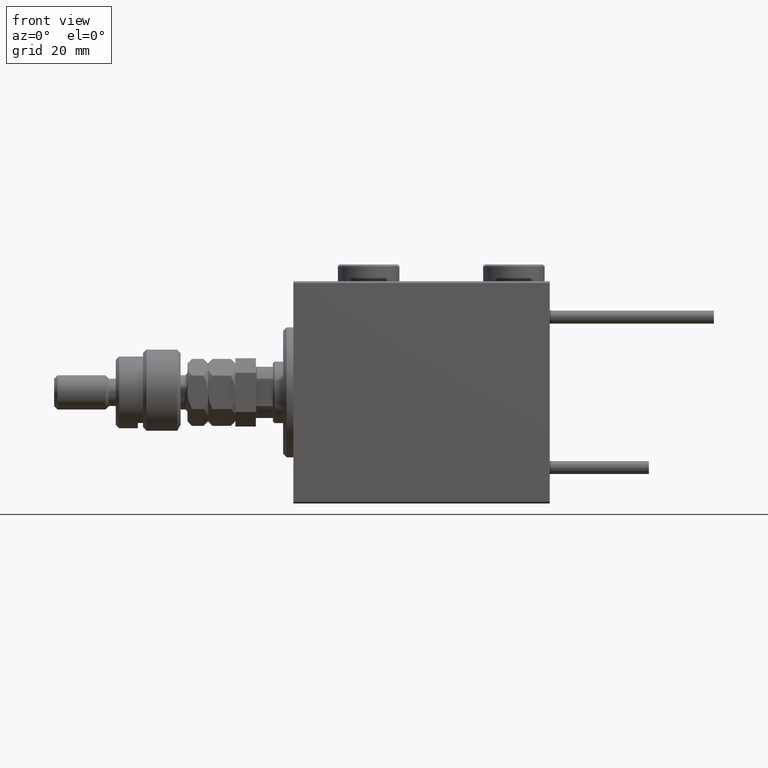
[diagram: clean part render]
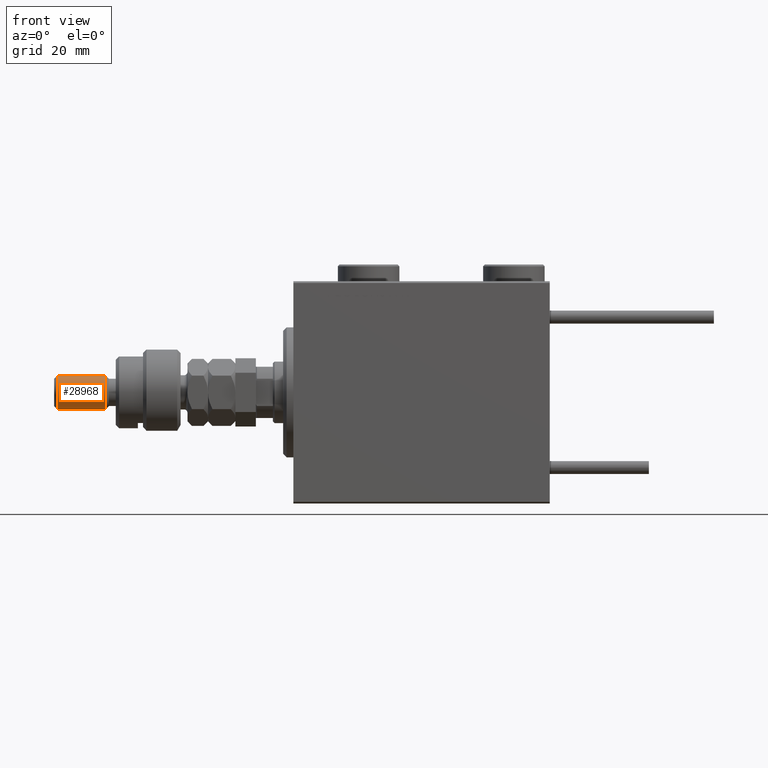
[diagram: same view with one face highlighted and labeled with its STEP entity id]
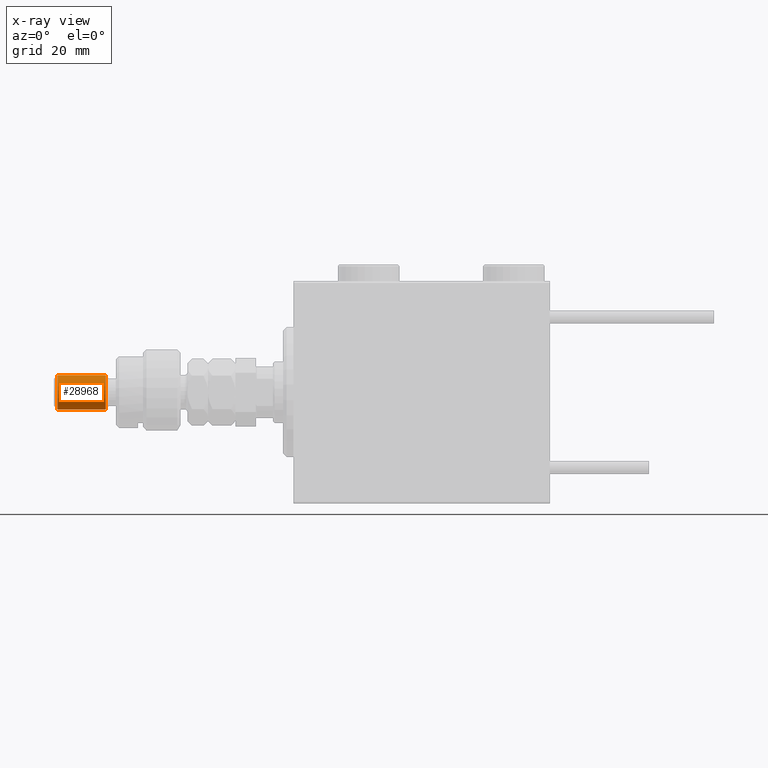
[diagram: x-ray of the same camera — body ghosted, the highlighted face saturated]
A machine part, front view. The second image highlights one B-rep face of the part: STEP entity #28968.
The next image is the same camera in x-ray: the body ghosted, the highlighted face saturated — about 0% of this face is hidden behind the body in this view.
In plain terms, the highlighted cylindrical surface (edge-blend (fillet) strip) has radius 5 mm, axis along (1, 0, -0).
Its self-contained STEP definition (entity closure, byte-faithful):
#247 = CARTESIAN_POINT ( 'NONE',  ( -5.000000000000000888, 0.000000000000000000, 36.00000000000000711 ) ) ;
#1772 = CARTESIAN_POINT ( 'NONE',  ( 5.000000000000000888, 6.123233995736767268E-16, 21.99999999999999289 ) ) ;
#2523 = DIRECTION ( 'NONE',  ( -0.000000000000000000, -0.000000000000000000, -1.000000000000000000 ) ) ;
#2704 = CIRCLE ( 'NONE', #50116, 5.000000000000000888 ) ;
#4340 = EDGE_LOOP ( 'NONE', ( #39442, #18457, #51575, #30185 ) ) ;
#7300 = VERTEX_POINT ( 'NONE', #21479 ) ;
#10517 = VERTEX_POINT ( 'NONE', #41393 ) ;
#10783 = CYLINDRICAL_SURFACE ( 'NONE', #44374, 5.000000000000000888 ) ;
#10995 = CARTESIAN_POINT ( 'NONE',  ( 0.000000000000000000, 0.000000000000000000, 36.00000000000000711 ) ) ;
#11262 = AXIS2_PLACEMENT_3D ( 'NONE', #18903, #31250, #53078 ) ;
#11610 = DIRECTION ( 'NONE',  ( -0.000000000000000000, -0.000000000000000000, -1.000000000000000000 ) ) ;
#13045 = VECTOR ( 'NONE', #2523, 1000.000000000000000 ) ;
#13533 = CARTESIAN_POINT ( 'NONE',  ( -5.000000000000000888, 0.000000000000000000, 37.00000000000000000 ) ) ;
#13977 = VERTEX_POINT ( 'NONE', #247 ) ;
#14974 = FACE_OUTER_BOUND ( 'NONE', #4340, .T. ) ;
#18457 = ORIENTED_EDGE ( 'NONE', *, *, #41730, .T. ) ;
#18903 = CARTESIAN_POINT ( 'NONE',  ( 0.000000000000000000, 0.000000000000000000, 21.99999999999999289 ) ) ;
#19206 = VECTOR ( 'NONE', #22500, 1000.000000000000000 ) ;
#21479 = CARTESIAN_POINT ( 'NONE',  ( -5.000000000000000888, 0.000000000000000000, 21.99999999999999289 ) ) ;
#22500 = DIRECTION ( 'NONE',  ( -0.000000000000000000, -0.000000000000000000, -1.000000000000000000 ) ) ;
#23712 = EDGE_CURVE ( 'NONE', #13977, #7300, #43506, .T. ) ;
#26815 = EDGE_CURVE ( 'NONE', #10517, #31822, #36948, .T. ) ;
#28024 = CARTESIAN_POINT ( 'NONE',  ( 5.000000000000000888, 6.123233995736767268E-16, 37.00000000000000000 ) ) ;
#28858 = EDGE_CURVE ( 'NONE', #7300, #31822, #31833, .T. ) ;
#28968 = ADVANCED_FACE ( 'NONE', ( #14974 ), #10783, .T. ) ;
#30185 = ORIENTED_EDGE ( 'NONE', *, *, #28858, .T. ) ;
#31250 = DIRECTION ( 'NONE',  ( -0.000000000000000000, -0.000000000000000000, 1.000000000000000000 ) ) ;
#31822 = VERTEX_POINT ( 'NONE', #1772 ) ;
#31833 = CIRCLE ( 'NONE', #11262, 5.000000000000000888 ) ;
#36540 = CARTESIAN_POINT ( 'NONE',  ( 0.000000000000000000, 0.000000000000000000, 37.00000000000000000 ) ) ;
#36948 = LINE ( 'NONE', #28024, #13045 ) ;
#37082 = DIRECTION ( 'NONE',  ( -1.000000000000000000, 0.000000000000000000, 0.000000000000000000 ) ) ;
#39442 = ORIENTED_EDGE ( 'NONE', *, *, #26815, .F. ) ;
#41393 = CARTESIAN_POINT ( 'NONE',  ( 5.000000000000000888, 6.123233995736767268E-16, 36.00000000000000711 ) ) ;
#41730 = EDGE_CURVE ( 'NONE', #10517, #13977, #2704, .T. ) ;
#43506 = LINE ( 'NONE', #13533, #19206 ) ;
#44374 = AXIS2_PLACEMENT_3D ( 'NONE', #36540, #11610, #37082 ) ;
#45442 = DIRECTION ( 'NONE',  ( 0.000000000000000000, 0.000000000000000000, -1.000000000000000000 ) ) ;
#49913 = DIRECTION ( 'NONE',  ( 1.000000000000000000, 0.000000000000000000, 0.000000000000000000 ) ) ;
#50116 = AXIS2_PLACEMENT_3D ( 'NONE', #10995, #45442, #49913 ) ;
#51575 = ORIENTED_EDGE ( 'NONE', *, *, #23712, .T. ) ;
#53078 = DIRECTION ( 'NONE',  ( 1.000000000000000000, 0.000000000000000000, 0.000000000000000000 ) ) ;